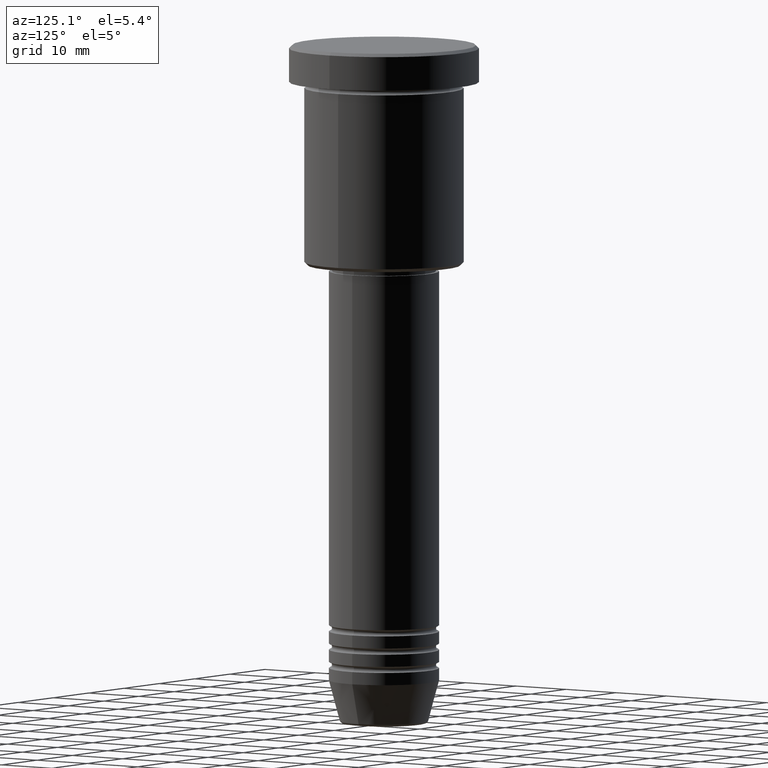
[diagram: clean part render]
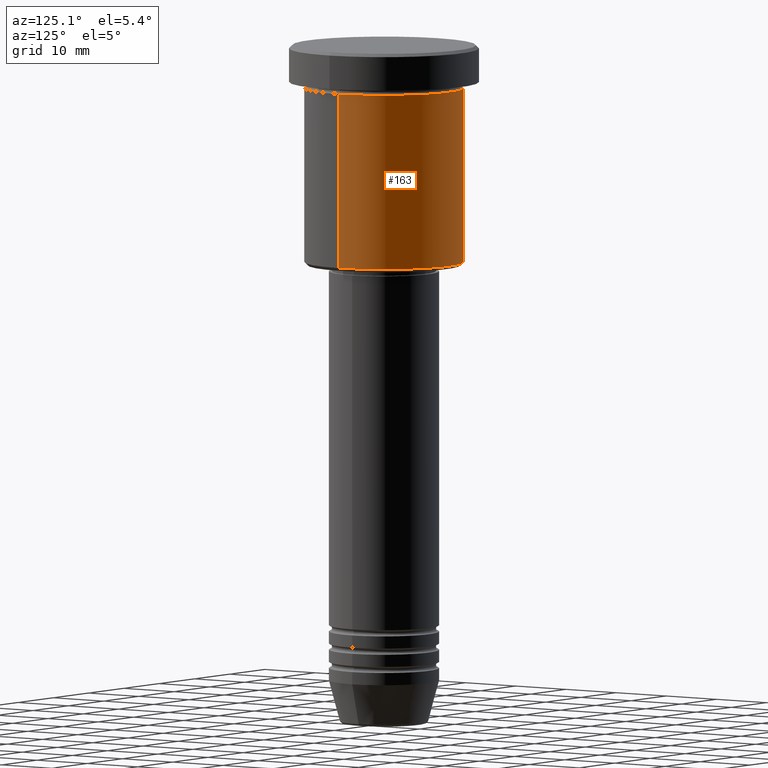
[diagram: same view with one face highlighted and labeled with its STEP entity id]
A machine part, auxiliary view. The second image highlights one B-rep face of the part: STEP entity #163.
In plain terms, the highlighted cylindrical surface (partial cylindrical patch) has radius 13 mm, axis along (-0, -0, 1).
Its self-contained STEP definition (entity closure, byte-faithful):
#6 = VERTEX_POINT ( 'NONE', #404 ) ;
#15 = AXIS2_PLACEMENT_3D ( 'NONE', #854, #298, #419 ) ;
#26 = DIRECTION ( 'NONE',  ( 1.000000000000000000, 0.000000000000000000, 0.000000000000000000 ) ) ;
#79 = EDGE_CURVE ( 'NONE', #187, #565, #967, .T. ) ;
#125 = CARTESIAN_POINT ( 'NONE',  ( -13.00000000000000000, 1.592040838891559095E-15, -6.999999999999995559 ) ) ;
#145 = DIRECTION ( 'NONE',  ( -0.000000000000000000, -0.000000000000000000, 1.000000000000000000 ) ) ;
#149 = DIRECTION ( 'NONE',  ( -0.000000000000000000, -0.000000000000000000, 1.000000000000000000 ) ) ;
#152 = EDGE_CURVE ( 'NONE', #6, #428, #521, .T. ) ;
#163 = ADVANCED_FACE ( 'NONE', ( #1032 ), #589, .T. ) ;
#187 = VERTEX_POINT ( 'NONE', #873 ) ;
#216 = EDGE_LOOP ( 'NONE', ( #653, #603, #335, #919 ) ) ;
#298 = DIRECTION ( 'NONE',  ( -0.000000000000000000, -0.000000000000000000, 1.000000000000000000 ) ) ;
#318 = CARTESIAN_POINT ( 'NONE',  ( 13.00000000000000000, 0.000000000000000000, -6.999999999999995559 ) ) ;
#326 = CIRCLE ( 'NONE', #1113, 13.00000000000000000 ) ;
#335 = ORIENTED_EDGE ( 'NONE', *, *, #1143, .F. ) ;
#404 = CARTESIAN_POINT ( 'NONE',  ( -13.00000000000000000, 1.592040838891559095E-15, -35.50000000000001421 ) ) ;
#419 = DIRECTION ( 'NONE',  ( -1.000000000000000000, 0.000000000000000000, 0.000000000000000000 ) ) ;
#428 = VERTEX_POINT ( 'NONE', #125 ) ;
#451 = AXIS2_PLACEMENT_3D ( 'NONE', #853, #952, #26 ) ;
#513 = CARTESIAN_POINT ( 'NONE',  ( 0.000000000000000000, 0.000000000000000000, -6.999999999999995559 ) ) ;
#521 = LINE ( 'NONE', #1068, #539 ) ;
#539 = VECTOR ( 'NONE', #149, 1000.000000000000000 ) ;
#541 = CIRCLE ( 'NONE', #15, 13.00000000000000000 ) ;
#565 = VERTEX_POINT ( 'NONE', #318 ) ;
#589 = CYLINDRICAL_SURFACE ( 'NONE', #451, 13.00000000000000000 ) ;
#603 = ORIENTED_EDGE ( 'NONE', *, *, #152, .T. ) ;
#623 = DIRECTION ( 'NONE',  ( 1.000000000000000000, 0.000000000000000000, 0.000000000000000000 ) ) ;
#653 = ORIENTED_EDGE ( 'NONE', *, *, #941, .T. ) ;
#782 = CARTESIAN_POINT ( 'NONE',  ( 13.00000000000000000, 0.000000000000000000, 0.000000000000000000 ) ) ;
#853 = CARTESIAN_POINT ( 'NONE',  ( 0.000000000000000000, 0.000000000000000000, 0.000000000000000000 ) ) ;
#854 = CARTESIAN_POINT ( 'NONE',  ( 0.000000000000000000, 0.000000000000000000, -35.50000000000001421 ) ) ;
#873 = CARTESIAN_POINT ( 'NONE',  ( 13.00000000000000000, 0.000000000000000000, -35.50000000000001421 ) ) ;
#919 = ORIENTED_EDGE ( 'NONE', *, *, #79, .F. ) ;
#941 = EDGE_CURVE ( 'NONE', #187, #6, #541, .T. ) ;
#952 = DIRECTION ( 'NONE',  ( -0.000000000000000000, -0.000000000000000000, 1.000000000000000000 ) ) ;
#967 = LINE ( 'NONE', #782, #1138 ) ;
#1032 = FACE_OUTER_BOUND ( 'NONE', #216, .T. ) ;
#1062 = DIRECTION ( 'NONE',  ( -0.000000000000000000, -0.000000000000000000, 1.000000000000000000 ) ) ;
#1068 = CARTESIAN_POINT ( 'NONE',  ( -13.00000000000000000, 1.592040838891559095E-15, 0.000000000000000000 ) ) ;
#1113 = AXIS2_PLACEMENT_3D ( 'NONE', #513, #1062, #623 ) ;
#1138 = VECTOR ( 'NONE', #145, 1000.000000000000000 ) ;
#1143 = EDGE_CURVE ( 'NONE', #565, #428, #326, .T. ) ;